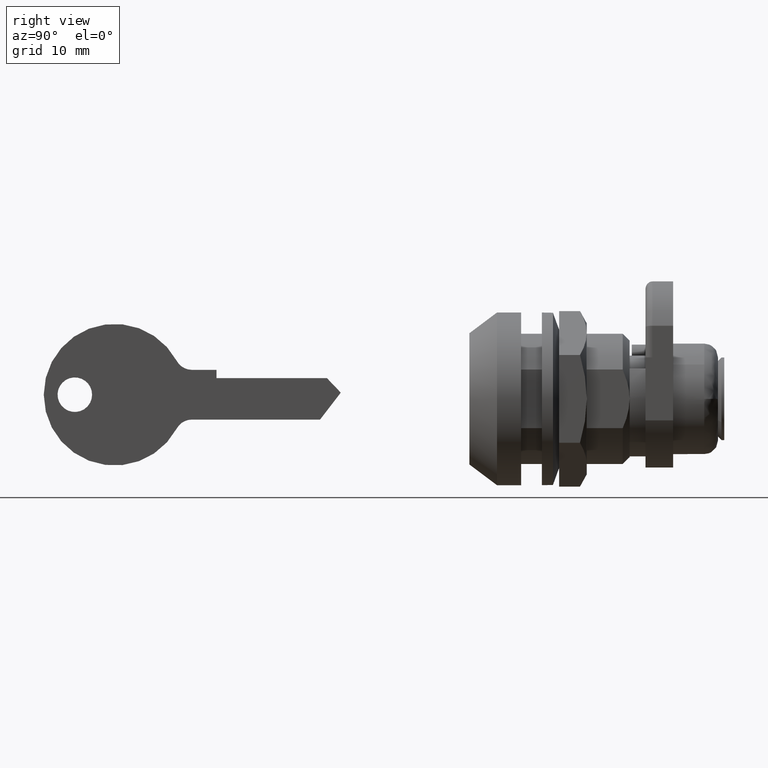
[diagram: clean part render]
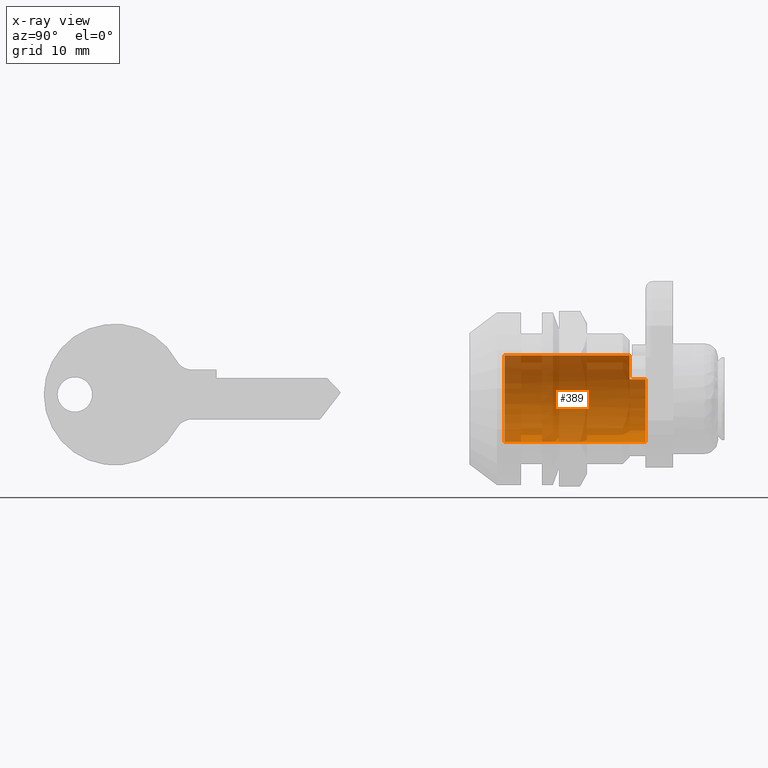
[diagram: x-ray — body ghosted, one internal face saturated and labeled with its STEP entity id]
A machine part, right view, then the same camera in x-ray: the body is ghosted and one INTERNAL B-rep face — a face not visible from any outside direction — is saturated and labeled: STEP entity #389.
In plain terms, the highlighted cylindrical surface (partial cylindrical patch) has radius 6.3 mm, axis along (0, 1, 0).
Its self-contained STEP definition (entity closure, byte-faithful):
#389=ADVANCED_FACE('',(#701),#700,.F.);
#700=CYLINDRICAL_SURFACE('',#2117,6.30000000000E+00);
#701=FACE_OUTER_BOUND('',#2118,.T.);
#2114=CARTESIAN_POINT('',(0.00000000000E+00,0.00000000000E+00,0.00000000000E+00));
#2115=DIRECTION('',(-0.00000000000E+00,1.00000000000E+00,-0.00000000000E+00));
#2116=DIRECTION('',(0.00000000000E+00,0.00000000000E+00,1.00000000000E+00));
#2117=AXIS2_PLACEMENT_3D('',#2114,#2115,#2116);
#2118=EDGE_LOOP('',(#3148,#3149,#3150,#3151,#3152,#3153));
#3148=ORIENTED_EDGE('',*,*,#3862,.T.);
#3149=ORIENTED_EDGE('',*,*,#3872,.T.);
#3150=ORIENTED_EDGE('',*,*,#3864,.F.);
#3151=ORIENTED_EDGE('',*,*,#3835,.F.);
#3152=ORIENTED_EDGE('',*,*,#3858,.F.);
#3153=ORIENTED_EDGE('',*,*,#3873,.F.);
#3835=EDGE_CURVE('',#4268,#4269,#4270,.T.);
#3858=EDGE_CURVE('',#4415,#4268,#4422,.T.);
#3862=EDGE_CURVE('',#4443,#4442,#4450,.T.);
#3864=EDGE_CURVE('',#4269,#4462,#4463,.T.);
#3872=EDGE_CURVE('',#4442,#4462,#4513,.T.);
#3873=EDGE_CURVE('',#4443,#4415,#4519,.T.);
#4268=VERTEX_POINT('',#6789);
#4269=VERTEX_POINT('',#6790);
#4270=LINE('',#6791,#6792);
#4415=VERTEX_POINT('',#6889);
#4422=CIRCLE('',#6897,6.30000000000E+00);
#4442=VERTEX_POINT('',#6908);
#4443=VERTEX_POINT('',#6909);
#4450=CIRCLE('',#6917,6.30000000000E+00);
#4462=VERTEX_POINT('',#6922);
#4463=CIRCLE('',#6926,6.30000000000E+00);
#4513=(BOUNDED_CURVE() B_SPLINE_CURVE(1,(#6949,#6950),.UNSPECIFIED.,.F.,.F.) B_SPLINE_CURVE_WITH_KNOTS((2,2),(8.33333328360E-02,9.16666665505E-01),.UNSPECIFIED.) CURVE() GEOMETRIC_REPRESENTATION_ITEM() RATIONAL_B_SPLINE_CURVE((1.00000000000E+00,1.00000000000E+00)) REPRESENTATION_ITEM('') );
#4519=(BOUNDED_CURVE() B_SPLINE_CURVE(1,(#6951,#6952),.UNSPECIFIED.,.F.,.F.) B_SPLINE_CURVE_WITH_KNOTS((2,2),(8.33333333333E-02,8.22712418301E-01),.UNSPECIFIED.) CURVE() GEOMETRIC_REPRESENTATION_ITEM() RATIONAL_B_SPLINE_CURVE((7.50000000000E-01,7.50000000000E-01)) REPRESENTATION_ITEM('') );
#6789=CARTESIAN_POINT('',(5.63854782945E+00,2.32000000000E+01,-2.81012070470E+00));
#6790=CARTESIAN_POINT('',(5.63854782945E+00,2.55000000000E+01,-2.81012070470E+00));
#6791=CARTESIAN_POINT('',(5.63854782945E+00,2.32000000000E+01,-2.81012070470E+00));
#6792=VECTOR('',#6793,2.30000000000E+00);
#6793=DIRECTION('',(0.00000000000E+00,1.00000000000E+00,0.00000000000E+00));
#6889=CARTESIAN_POINT('',(1.16966924490E-07,2.32000000000E+01,-6.30000000000E+00));
#6894=CARTESIAN_POINT('',(0.00000000000E+00,2.32000000000E+01,0.00000000000E+00));
#6895=DIRECTION('',(0.00000000000E+00,-1.00000000000E+00,-0.00000000000E+00));
#6896=DIRECTION('',(8.95007591976E-01,0.00000000000E+00,-4.46050905509E-01));
#6897=AXIS2_PLACEMENT_3D('',#6894,#6895,#6896);
#6908=CARTESIAN_POINT('',(-2.96059473233E-16,5.10000000000E+00,6.30000000000E+00));
#6909=CARTESIAN_POINT('',(0.00000000000E+00,5.10000000000E+00,-6.30000000000E+00));
#6914=CARTESIAN_POINT('',(0.00000000000E+00,5.10000000000E+00,0.00000000000E+00));
#6915=DIRECTION('',(0.00000000000E+00,-1.00000000000E+00,-0.00000000000E+00));
#6916=DIRECTION('',(-1.22460635382E-16,0.00000000000E+00,-1.00000000000E+00));
#6917=AXIS2_PLACEMENT_3D('',#6914,#6915,#6916);
#6922=CARTESIAN_POINT('',(-3.41480210686E-08,2.55000000000E+01,6.30000000000E+00));
#6923=CARTESIAN_POINT('',(0.00000000000E+00,2.55000000000E+01,0.00000000000E+00));
#6924=DIRECTION('',(0.00000000000E+00,-1.00000000000E+00,0.00000000000E+00));
#6925=DIRECTION('',(8.95007591976E-01,0.00000000000E+00,-4.46050905509E-01));
#6926=AXIS2_PLACEMENT_3D('',#6923,#6924,#6925);
#6949=CARTESIAN_POINT('',(0.00000000000E+00,5.09999998782E+00,6.30000000000E+00));
#6950=CARTESIAN_POINT('',(0.00000000000E+00,2.54999999716E+01,6.30000000000E+00));
#6951=CARTESIAN_POINT('',(-2.96059473233E-16,5.10000000000E+00,-6.30000000000E+00));
#6952=CARTESIAN_POINT('',(-2.96059473233E-16,2.32000000000E+01,-6.30000000000E+00));